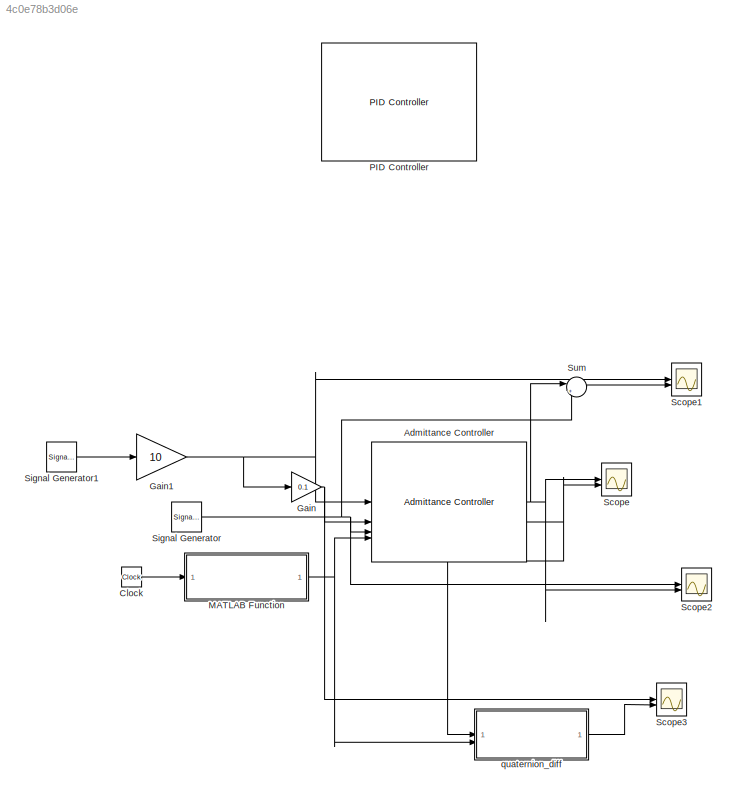
MODEL slx_4c0e78b3d06e
KIND model
CONFIG AbsTol = auto
CONFIG EnableMultiTasking = off
CONFIG FixedStep = 1/500.
CONFIG MaxStep = auto
CONFIG MinStep = auto
CONFIG RelTol = 1e-3
CONFIG SampleTimeConstraint = Unconstrained
CONFIG SolverName = ode1
CONFIG StartTime = 0.0
CONFIG StopTime = 100
BLOCK [Reference] Admittance Controller  REF=sdu_controllers/Admittance Controller
  SourceBlock = sdu_controllers/Admittance Controller
  SourceType = admittance_controller
BLOCK [Clock] Clock
BLOCK [Gain] Gain
  Gain = 0.1
BLOCK [Gain] Gain1
  Gain = 10
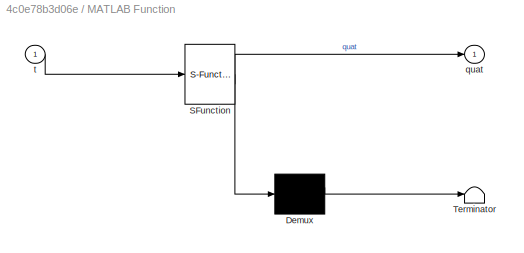
BLOCK [SubSystem] MATLAB Function
  ErrorFcn = Stateflow.Translate.translate
  PermitHierarchicalResolution = ExplicitOnly
  SFBlockType = MATLAB Function
  TreatAsAtomicUnit = on
BLOCK [Demux] MATLAB Function/ Demux 
  Outputs = 1
BLOCK [S-Function] MATLAB Function/ SFunction 
  EnableBusSupport = on
  FunctionName = sf_sfun
  PortCounts = [1 2]
  SFcnIsStateOwnerBlock = off
  SFunctionDeploymentMode = off
  Tag = Stateflow S-Function 2
BLOCK [Terminator] MATLAB Function/ Terminator 
BLOCK [Outport] MATLAB Function/quat
BLOCK [Inport] MATLAB Function/t
BLOCK [Reference] PID Controller  REF=sdu_controllers/PID Controller
  SourceBlock = sdu_controllers/PID Controller
  SourceType = pid_controller
BLOCK [Scope] Scope
  Floating = off
  NumInputPorts = 2
  ScopeSpecificationString = Simulink.scopes.TimeScopeBlockCfg('CurrentConfiguration', extmgr.ConfigurationSet(extmgr.Configuration('Core','General UI',true),extmgr.Configuration('Core','Source UI',true),extmgr.Configuration('Sources','WiredSimulink',true),extmgr.Configuration('Visuals','Time Domain',true,'SerializedDisplays',{struct('MinYLimReal','-4.42813','MaxYLimReal','4.42546','YLabelReal','','MinYLimMag','0.00000','MaxY...<+2523ch>
BLOCK [Scope] Scope1
  Floating = off
  NumInputPorts = 2
  ScopeSpecificationString = Simulink.scopes.TimeScopeBlockCfg('CurrentConfiguration', extmgr.ConfigurationSet(extmgr.Configuration('Core','General UI',true),extmgr.Configuration('Core','Source UI',true),extmgr.Configuration('Sources','WiredSimulink',true,'DataLoggingVariableName','ScopeData1'),extmgr.Configuration('Visuals','Time Domain',true,'SerializedDisplays',{struct('MinYLimReal','-37.5','MaxYLimReal','37.5','YLabelReal...<+2461ch>
BLOCK [Scope] Scope2
  Floating = off
  NumInputPorts = 2
  ScopeSpecificationString = Simulink.scopes.TimeScopeBlockCfg('CurrentConfiguration', extmgr.ConfigurationSet(extmgr.Configuration('Core','General UI',true),extmgr.Configuration('Core','Source UI',true),extmgr.Configuration('Sources','WiredSimulink',true,'DataLoggingVariableName','ScopeData2'),extmgr.Configuration('Visuals','Time Domain',true,'SerializedDisplays',{struct('MinYLimReal','-1.00000','MaxYLimReal','1.00000','YLab...<+2349ch>
BLOCK [Scope] Scope3
  Floating = off
  NumInputPorts = 2
  ScopeSpecificationString = Simulink.scopes.TimeScopeBlockCfg('CurrentConfiguration', extmgr.ConfigurationSet(extmgr.Configuration('Core','General UI',true),extmgr.Configuration('Core','Source UI',true),extmgr.Configuration('Sources','WiredSimulink',true,'DataLoggingVariableName','ScopeData3'),extmgr.Configuration('Visuals','Time Domain',true,'SerializedDisplays',{struct('MinYLimReal','-3.75','MaxYLimReal','3.75','YLabelReal...<+2267ch>
BLOCK [SignalGenerator] Signal Generator
  Amplitude = [1, 2, 3]
  Units = rad/sec
BLOCK [SignalGenerator] Signal Generator1
  Amplitude = [1, 2, 3]
  Frequency = [1.0,1.1,1.2] * 0.5
  Units = rad/sec
  WaveForm = square
BLOCK [Sum] Sum
  Inputs = |+-
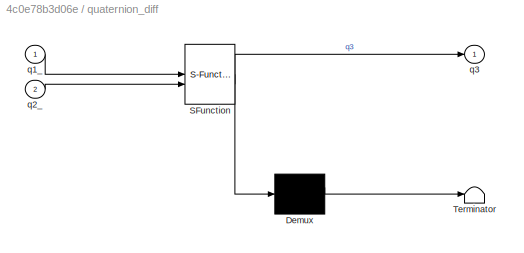
BLOCK [SubSystem] quaternion_diff
  ErrorFcn = Stateflow.Translate.translate
  PermitHierarchicalResolution = ExplicitOnly
  SFBlockType = MATLAB Function
  TreatAsAtomicUnit = on
BLOCK [Demux] quaternion_diff/ Demux 
  Outputs = 1
BLOCK [S-Function] quaternion_diff/ SFunction 
  EnableBusSupport = on
  FunctionName = sf_sfun
  PortCounts = [2 2]
  SFcnIsStateOwnerBlock = off
  SFunctionDeploymentMode = off
  Tag = Stateflow S-Function 1
BLOCK [Terminator] quaternion_diff/ Terminator 
BLOCK [Inport] quaternion_diff/q1_
BLOCK [Inport] quaternion_diff/q2_
  Port = 2
BLOCK [Outport] quaternion_diff/q3
NET Admittance Controller:1 -> Scope2:2, Scope:1, Sum:1
NET Admittance Controller:2 -> Scope:2, quaternion_diff:1
LINE Clock:1 -> MATLAB Function:1
NET Gain1:1 -> Admittance Controller:1, Gain:1, Scope1:1
NET Gain:1 -> Admittance Controller:2, Scope3:1
NET MATLAB Function:1 -> Admittance Controller:4, quaternion_diff:2
LINE Signal Generator1:1 -> Gain1:1
NET Signal Generator:1 -> Admittance Controller:3, Scope2:1, Sum:2
LINE Sum:1 -> Scope1:2
LINE quaternion_diff:1 -> Scope3:2
note: NET lines group one-source signal fan-out (src -> all destinations, sorted); 1:1 wires keep LINE
CHART MATLAB Function states=1 transitions=1
  STATE_LABEL 'eML_blk_kernel()'
  STATE_LABEL 'SCRIPT:\nfunction quat = get_quaternion(t)\n\nq1 = quaternion(1, 0, 0, 0);\nq1 = q1 / norm(q1);\n\n%\nq2 = quaternion(2, 3, 4, 5);\nq2 = q2 / norm(q2);\n\nqout = slerp(q1, q2, t/100);\n\nquat = compact(qout);'
CHART quaternion_diff states=1 transitions=1
  STATE_LABEL 'eML_blk_kernel()'
  STATE_LABEL 'SCRIPT:\nfunction q3 = quat_diff(q1_, q2_)\n\nq1 = quaternion(q1_);\nq2 = quaternion(q2_);\n\nq3 = compact(q1 - q2);'
CHART  states=0 transitions=0
CHART  states=0 transitions=0
